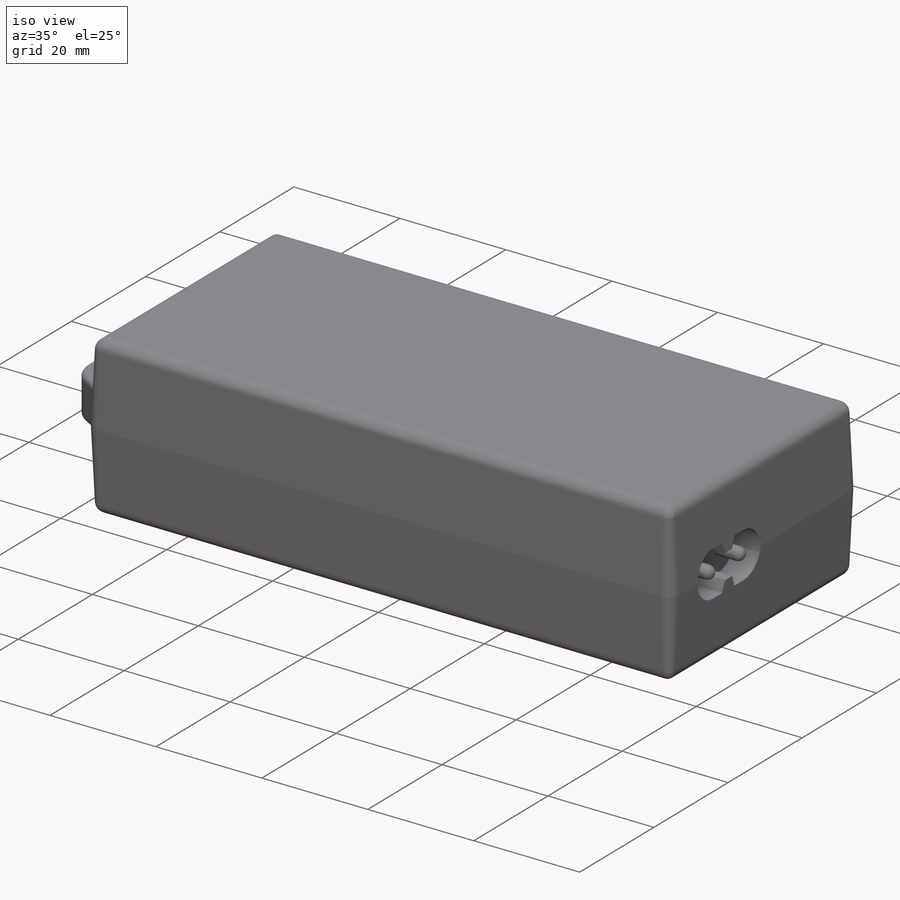
[diagram: iso view]
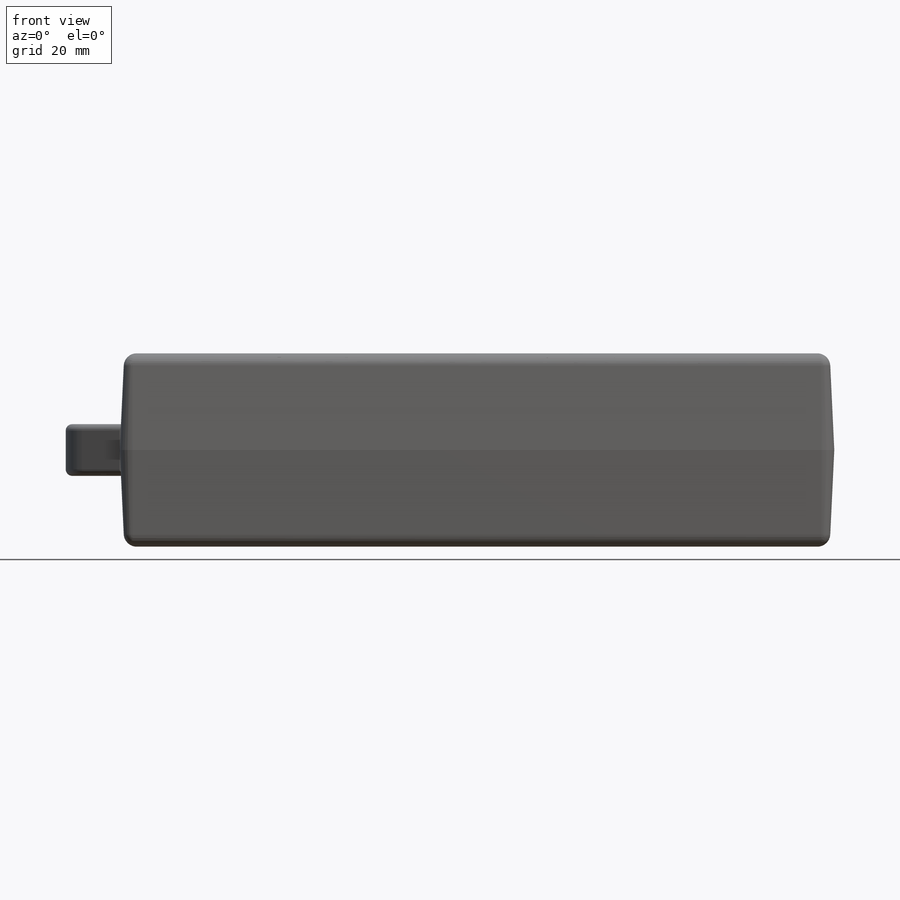
[diagram: front view]
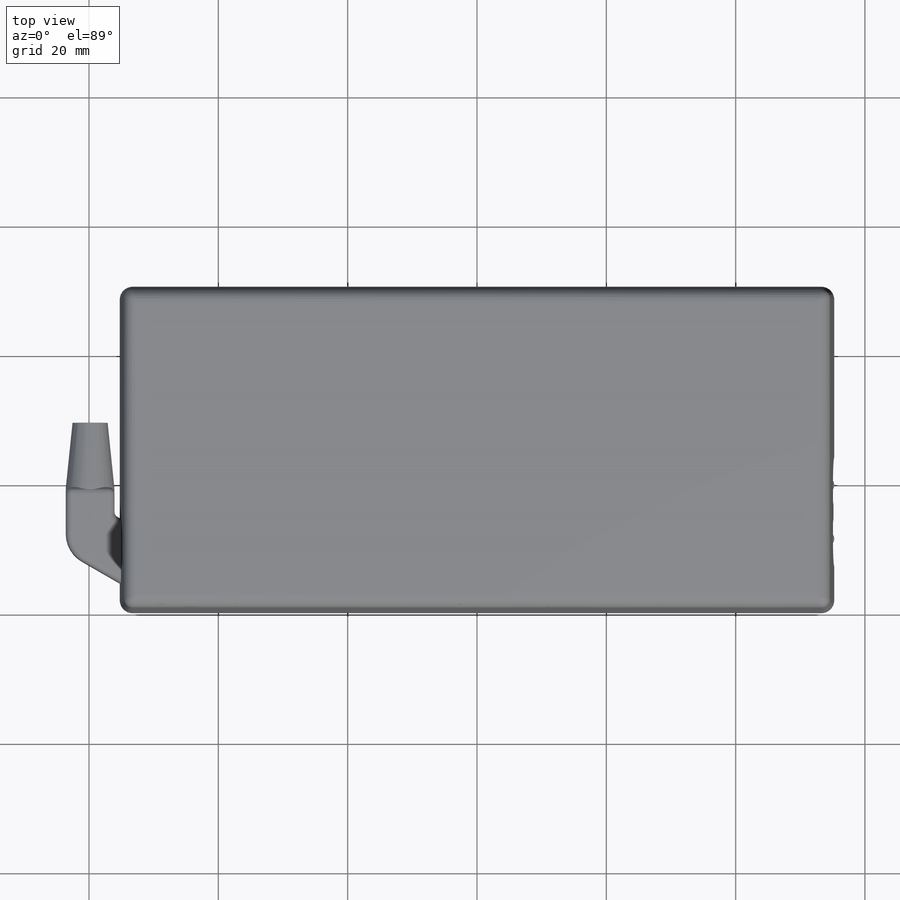
[diagram: top view]
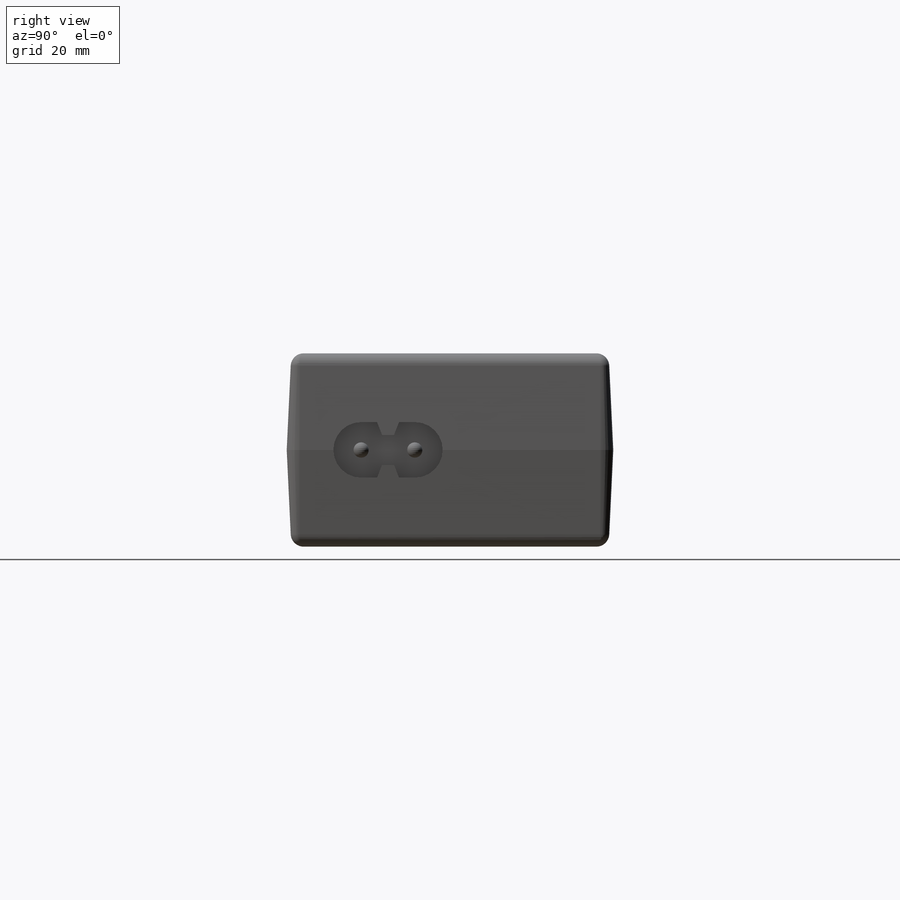
[diagram: right view]
SOLIDWORKS PART (.sldprt)
format: sldprt  version: not decoded by parser v0  size: 628,736 bytes
history: native  units: mm
features: sketch x11, extrude x6, fillet x5, plane x4, cut_extrude x2, material x1, sweep x1, mirror x1 (+12 scaffold rows collapsed)
feature tree (43):
  scaffold x12  (default folders/planes/origin — collapsed)
  material  "Material <not specified>"
  sketch  "Sketch1"  dims[c1.D1=~43.42928mm c1.D2=~147.033299mm c2.D1=110.5mm c2.D2=50.5mm c2.D3=55.25mm]
  extrude  "Boss-Extrude1"  Depth=29.9mm
  fillet  "Fillet2"  Radius=2mm
  sketch  "Sketch2"  dims[D1=~7.330625mm]
  plane  "Plane1"  Offset=25.25mm
  sketch  "Sketch4"  dims[D1=~2.265393mm]
  sketch  "3DSketch1"  dims[c1.D1=23.25mm c2.D1=~5.930718mm c3.D1=~24.717917mm]
  sweep  "Cut-Sweep1"
  sketch  "Sketch5"  dims[D1=0.0mm]
  cut_extrude  "Cut-Extrude1"  Depth=29.9mm
  plane  "Plane2"
  mirror  "Mirror1"
  fillet  "Fillet4"  Radius=2mm
  plane  "Plane3"
  sketch  "Sketch7"  dims[D1=8.6mm D2=8.6mm D3=8.3mm D4=11.51mm D5=1.7mm D6=0.925mm D7=~0.135175mm]
  cut_extrude  "Cut-Extrude2"  Depth=5mm
  sketch  "Sketch8"  dims[D1=2.37mm D2=2.37mm]
  extrude  "Boss-Extrude2"  Depth=5mm
  fillet  "Fillet5"  Radius=1.185mm
  plane  "Plane4"
  sketch  "Sketch9"  dims[c1.D1=~3.386603mm c1.D2=~5.788012mm c2.D1=4.62mm c2.D2=8.0mm c2.D3=4.0mm c2.D4=10.0mm]
  extrude  "Boss-Extrude3"  Depth=5mm
  sketch  "Sketch10"  dims[c1.D5=5.0mm c1.D6=1.0mm c1.D1=~5.234008mm c2.D1=60.0deg c2.D2=~0.79202mm c3.D2=60.0deg c3.D3=8.35mm c3.D4=10.0mm c3.D5=~4.349557mm c3.D7=10.0mm]
  extrude  "Boss-Extrude4"  [1 undecoded]
  fillet  "Fillet6"  Radius=1mm
  sketch  "Sketch11"  dims[D1=~7.533653mm]
  extrude  "Boss-Extrude5"  Depth=10mm
  sketch  "Sketch12"  dims[D1=0.0mm]
  extrude  "Boss-Extrude6"  Depth=5mm
  fillet  "Fillet7"  Radius=3mm
decode coverage: 23 of 26 modeling features carry decoded parameters
note: ~ marks probable driven/reference dimensions
note: 1 parameter value undecoded
note: suppression state not decoded; provenance and decode notes live in map.json
